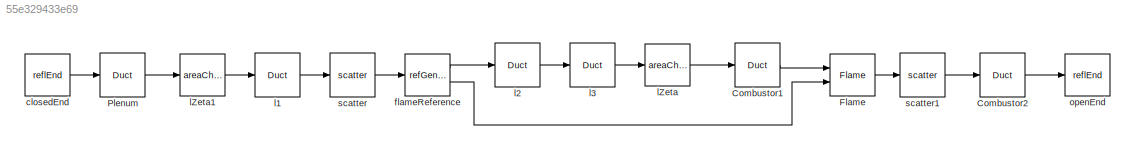
MODEL slx_55e329433e69
KIND model
CONFIG AbsTol = auto
CONFIG FixedStep = 1.0
CONFIG MaxStep = auto
CONFIG MinStep = auto
CONFIG RelTol = 1e-3
CONFIG SampleTimeConstraint = Unconstrained
CONFIG Solver = FixedStepDiscrete
CONFIG SolverMode = Auto
CONFIG SolverName = FixedStepDiscrete
CONFIG StartTime = 0.0
CONFIG StopTime = 1.0
BLOCK [Reference] Combustor1  REF=taXlibrary/Duct
  AttributesFormatString = %<l> m
  Ports = [1, 1]
  SourceBlock = taXlibrary/Duct
BLOCK [Reference] Combustor2  REF=taXlibrary/Duct
  AttributesFormatString = %<l> m
  Ports = [1, 1]
  SourceBlock = taXlibrary/Duct
BLOCK [Reference] Flame  REF=taXlibrary/Flame
  Ports = [2, 1]
  SourceBlock = taXlibrary/Flame
BLOCK [Reference] Plenum  REF=taXlibrary/Duct
  AttributesFormatString = %<l> m
  Ports = [1, 1]
  SourceBlock = taXlibrary/Duct
BLOCK [Reference] closedEnd  REF=taXlibrary/reflEnd
  AttributesFormatString = %<r>
  Ports = [0, 1]
  SourceBlock = taXlibrary/reflEnd
BLOCK [Reference] flameReference  REF=taXlibrary/refGeneric
  AttributesFormatString = %<modelname>
  Ports = [1, 2]
  SourceBlock = taXlibrary/refGeneric
BLOCK [Reference] l1  REF=taXlibrary/Duct
  AttributesFormatString = %<l> m
  Ports = [1, 1]
  SourceBlock = taXlibrary/Duct
BLOCK [Reference] l2  REF=taXlibrary/Duct
  AttributesFormatString = %<l> m
  Ports = [1, 1]
  SourceBlock = taXlibrary/Duct
BLOCK [Reference] l3  REF=taXlibrary/Duct
  AttributesFormatString = %<l> m
  Ports = [1, 1]
  SourceBlock = taXlibrary/Duct
BLOCK [Reference] lZeta  REF=taXlibrary/areaChange
  Ports = [1, 1]
  SourceBlock = taXlibrary/areaChange
BLOCK [Reference] lZeta1  REF=taXlibrary/areaChange
  Ports = [1, 1]
  SourceBlock = taXlibrary/areaChange
BLOCK [Reference] openEnd  REF=taXlibrary/reflEnd
  AttributesFormatString = %<r>
  Ports = [1]
  SourceBlock = taXlibrary/reflEnd
BLOCK [Reference] scatter  REF=taXlibrary/scatter
  Ports = [1, 1]
  SourceBlock = taXlibrary/scatter
BLOCK [Reference] scatter1  REF=taXlibrary/scatter
  Ports = [1, 1]
  SourceBlock = taXlibrary/scatter
LINE Combustor1:1 -> Flame:1
LINE Combustor2:1 -> openEnd:1
LINE Flame:1 -> scatter1:1
LINE Plenum:1 -> lZeta1:1
LINE closedEnd:1 -> Plenum:1
LINE flameReference:1 -> l2:1
LINE flameReference:2 -> Flame:2
LINE l1:1 -> scatter:1
LINE l2:1 -> l3:1
LINE l3:1 -> lZeta:1
LINE lZeta1:1 -> l1:1
LINE lZeta:1 -> Combustor1:1
LINE scatter1:1 -> Combustor2:1
LINE scatter:1 -> flameReference:1
